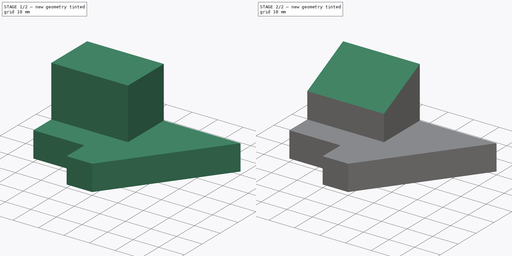
[diagram: build sequence overview — one tinted view per stage of 2, left to right]
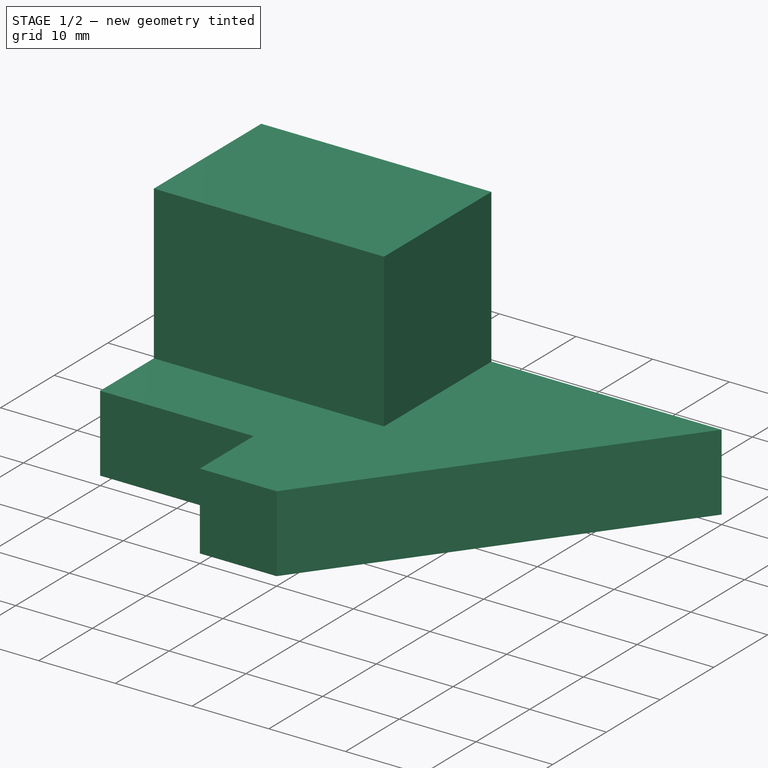
[diagram: stage 1 of 2 — iso view after this stage's code; geometry added in this stage tinted green]
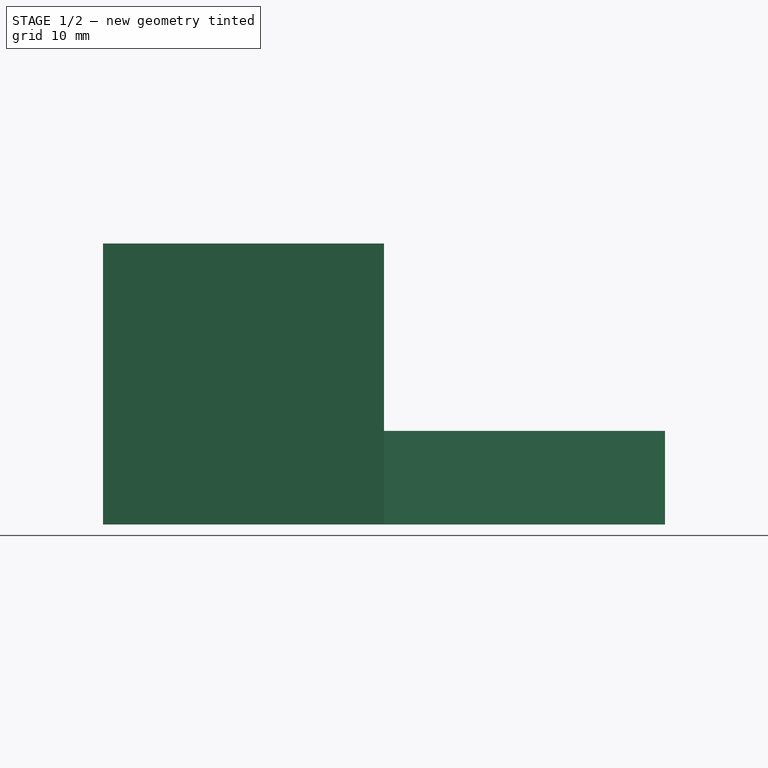
[diagram: stage 1 of 2 — front view after this stage's code; geometry added in this stage tinted green]
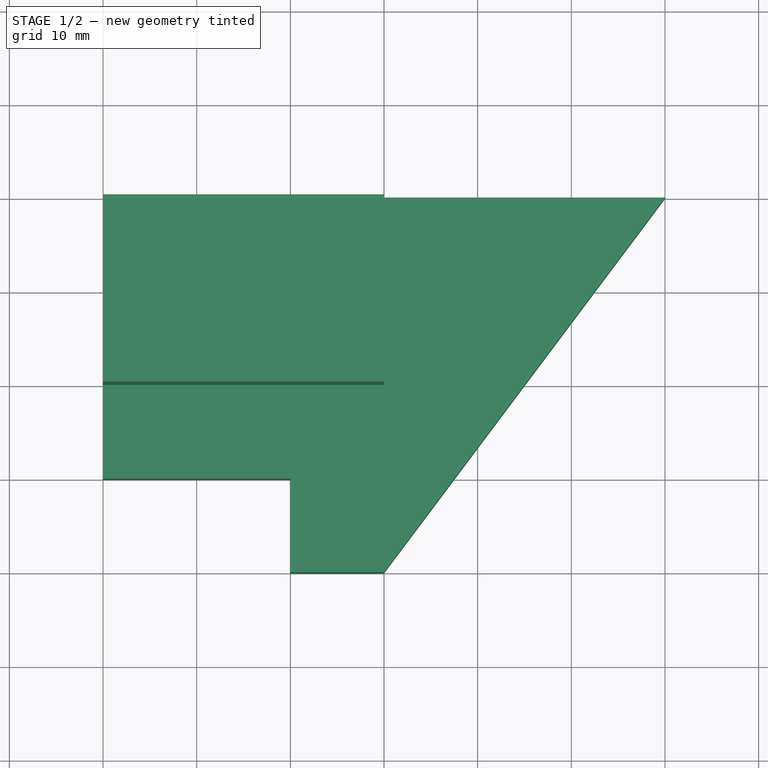
[diagram: stage 1 of 2 — top view after this stage's code; geometry added in this stage tinted green]
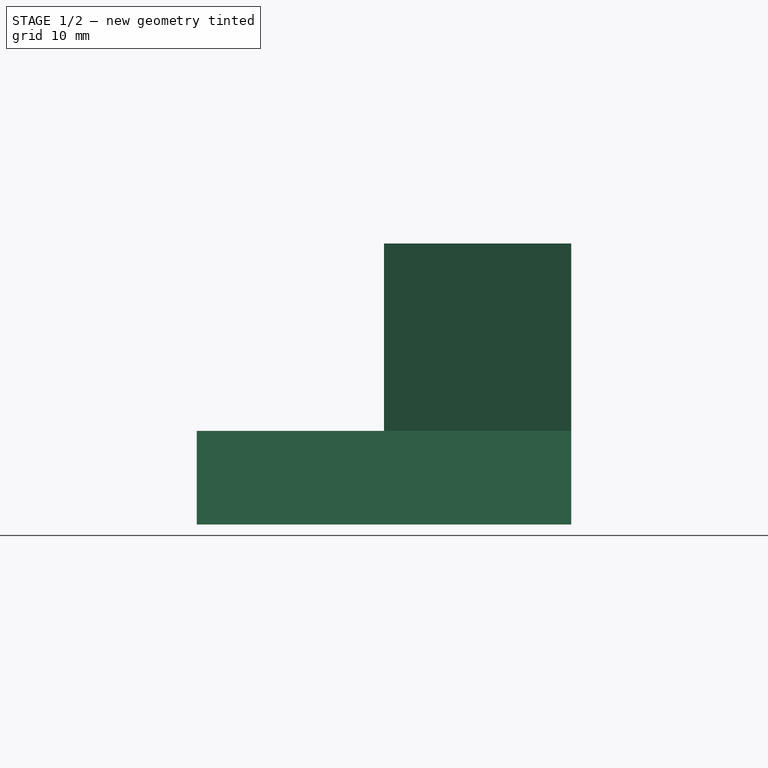
[diagram: stage 1 of 2 — right view after this stage's code; geometry added in this stage tinted green]
FCSTD DOCUMENT  (FreeCAD 1.0R39109 (Git))
Label: 43
License: All rights reserved
LicenseURL: https://en.wikipedia.org/wiki/All_rights_reserved
objects: Sketcher::SketchObject×3, PartDesign::Pad×2, PartDesign::Pocket×1, PartDesign::Body×1
note: 16 computed .brp shape members not serialized (recipe doc carries the construction recipe); baked Part::Feature solids carry a one-line shape summary decoded from their .brp

FEATURE [Sketcher::SketchObject] Sketch
  ArcFitTolerance = 1e-06
  AttachmentSupport = -> [XY_Plane]
  FullyConstrained = true
  MakeInternals = false
  MapMode = 5
  sketch-geometry (6):
    g0: LineSegment StartX=-30 StartY=20 StartZ=0 EndX=-30 EndY=-10 EndZ=0
    g1: LineSegment StartX=-30 StartY=-10 StartZ=0 EndX=-10 EndY=-10 EndZ=0
    g2: LineSegment StartX=-10 StartY=-10 StartZ=0 EndX=-10 EndY=-20 EndZ=0
    g3: LineSegment StartX=-10 StartY=-20 StartZ=0 EndX=1.8e-15 EndY=-20 EndZ=0
    g4: LineSegment StartX=1.8e-15 StartY=-20 StartZ=0 EndX=30 EndY=20 EndZ=0
    g5: LineSegment StartX=30 StartY=20 StartZ=0 EndX=-30 EndY=20 EndZ=0
  constraints (18):
    c: Coincident(g0,g1)
    c: Horizontal(g1)
    c: Coincident(g1,g2)
    c: Coincident(g2,g3)
    c: Horizontal(g3)
    c: Coincident(g3,g4)
    c: Coincident(g4,g5)
    c: Coincident(g5,g0)
    c: Horizontal(g5)
    c: Vertical(g0)
    c: Vertical(g2)
    c: DistanceY(g0,g0) = 30
    c: DistanceX(g3,g3) = 10
    c: DistanceY(g2,g2) = 10
    c: DistanceX(g1,g1) = 20
    c: Distance(g-1,g5) = 20
    c: DistanceX(g5,g5) = 60
    c: Distance(g4,g-2) = 30
FEATURE [PartDesign::Pad] Pad
  Direction = (0,0,1)
  Length = 10
  Length2 = 10
  Midplane = true
  Profile = -> Sketch
  ReferenceAxis = -> Sketch [N_Axis]
  Refine = true
  Suppressed = false
  Type = 0
FEATURE [Sketcher::SketchObject] Sketch001
  ArcFitTolerance = 1e-06
  AttachmentSupport = -> [Pad]
  ExternalGeometry = -> [Pad]
  FullyConstrained = true
  MakeInternals = false
  MapMode = 5
  Placement = pos=(0,0,5) rot=(0,0,1;0rad)
  sketch-geometry (4):
    g0: LineSegment StartX=-30 StartY=20 StartZ=0 EndX=-30 EndY=0 EndZ=0
    g1: LineSegment StartX=-30 StartY=0 StartZ=0 EndX=0 EndY=0 EndZ=0
    g2: LineSegment StartX=0 StartY=0 StartZ=0 EndX=0 EndY=20 EndZ=0
    g3: LineSegment StartX=0 StartY=20 StartZ=0 EndX=-30 EndY=20 EndZ=0
  constraints (10):
    c: Coincident(g0,g1)
    c: Coincident(g1,g2)
    c: Coincident(g2,g3)
    c: Coincident(g3,g0)
    c: Vertical(g0)
    c: Vertical(g2)
    c: Horizontal(g1)
    c: Horizontal(g3)
    c: Coincident(g0,g-4)
    c: Coincident(g1,g-1)
FEATURE [PartDesign::Pad] Pad001
  BaseFeature = -> Pad
  Direction = (0,0,1)
  Length = 20
  Length2 = 10
  Profile = -> Sketch001
  ReferenceAxis = -> Sketch001 [N_Axis]
  Refine = true
  Suppressed = false
  Type = 0
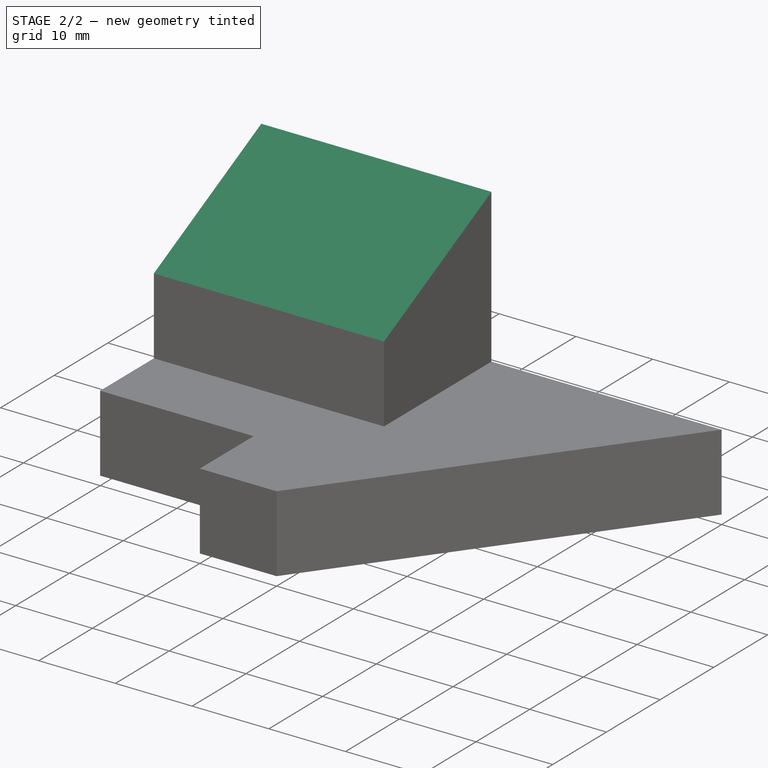
[diagram: stage 2 of 2 — iso view after this stage's code; geometry added in this stage tinted green]
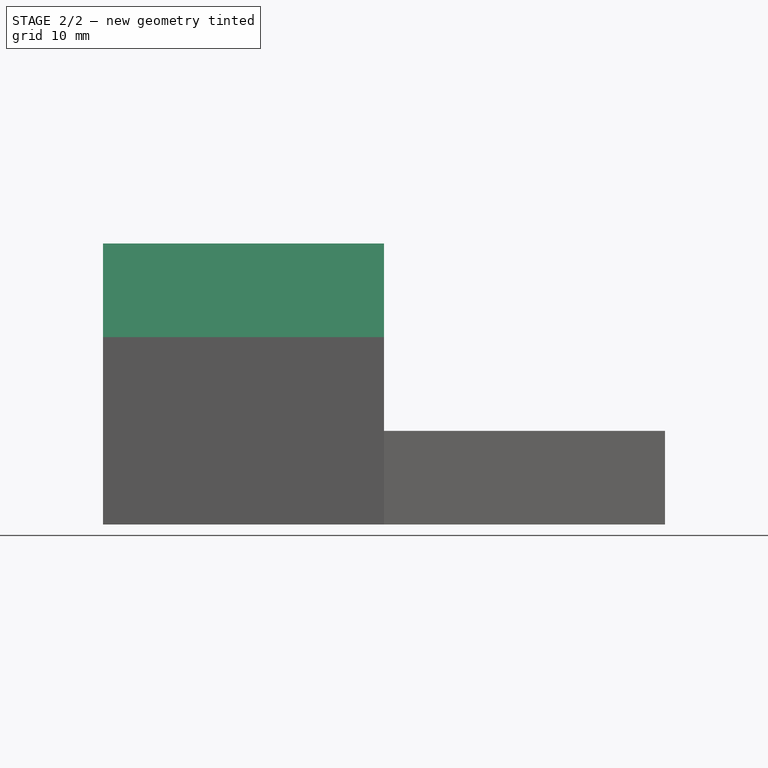
[diagram: stage 2 of 2 — front view after this stage's code; geometry added in this stage tinted green]
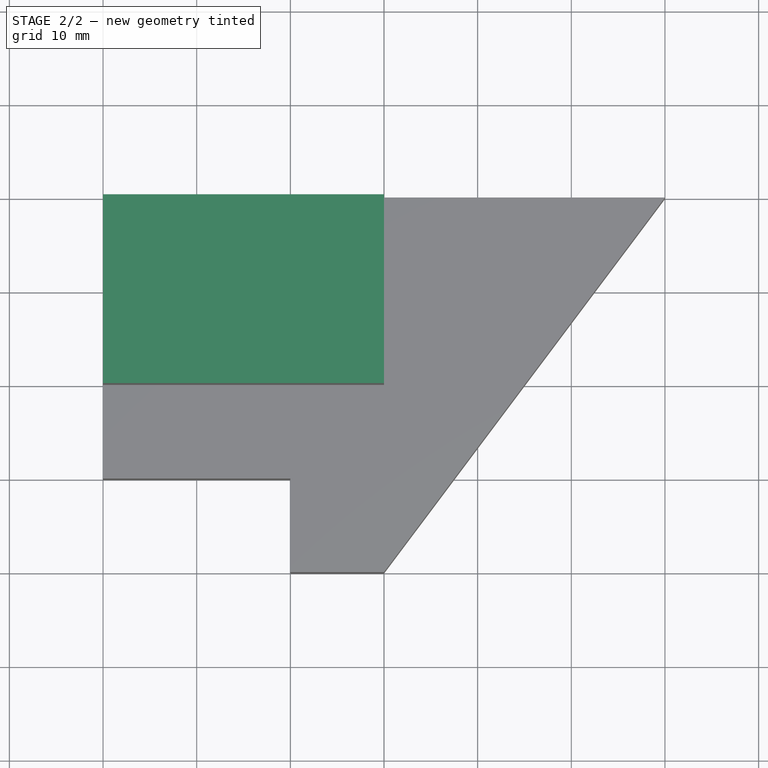
[diagram: stage 2 of 2 — top view after this stage's code; geometry added in this stage tinted green]
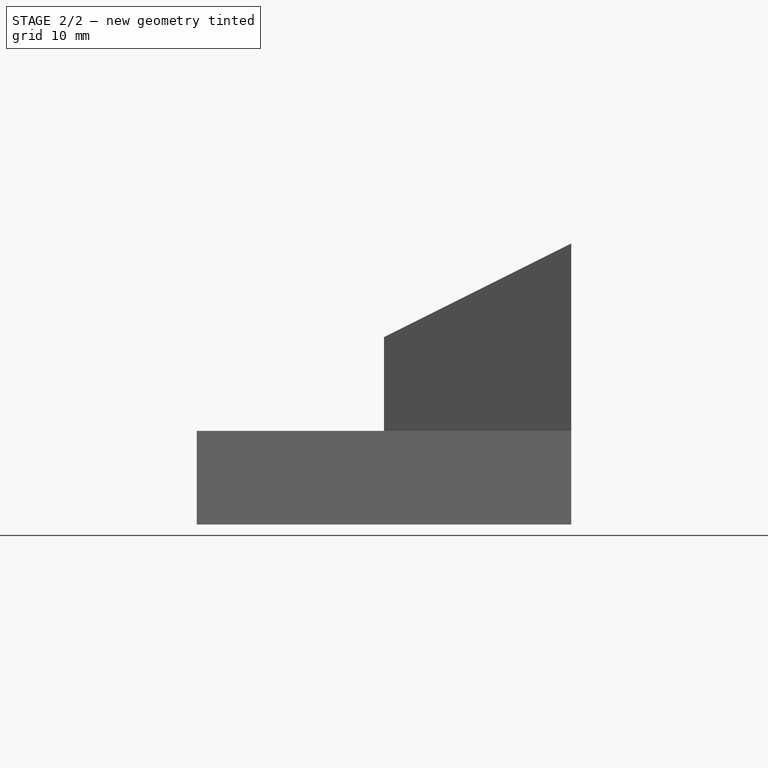
[diagram: stage 2 of 2 — right view after this stage's code; geometry added in this stage tinted green]
FEATURE [Sketcher::SketchObject] Sketch002
  ArcFitTolerance = 1e-06
  AttachmentSupport = -> [Pad001]
  ExternalGeometry = -> [Pad001]
  FullyConstrained = true
  MakeInternals = false
  MapMode = 5
  Placement = pos=(0,0,0) rot=(0.57735,0.57735,0.57735;2.0944rad)
  sketch-geometry (3):
    g0: LineSegment StartX=0 StartY=25 StartZ=0 EndX=0 EndY=15 EndZ=0
    g1: LineSegment StartX=0 StartY=25 StartZ=0 EndX=20 EndY=25 EndZ=0
    g2: LineSegment StartX=0 StartY=15 StartZ=0 EndX=20 EndY=25 EndZ=0
  constraints (7):
    c: Coincident(g0,g-4)
    c: Vertical(g0)
    c: DistanceY(g0,g0) = 10
    c: Coincident(g1,g0)
    c: Coincident(g1,g-4)
    c: Coincident(g2,g0)
    c: Coincident(g2,g1)
FEATURE [PartDesign::Pocket] Pocket
  BaseFeature = -> Pad001
  Direction = (-1,0,0)
  Length = 5
  Length2 = 5
  Profile = -> Sketch002
  ReferenceAxis = -> Sketch002 [N_Axis]
  Refine = true
  Suppressed = false
  Type = 1
FEATURE [PartDesign::Body] Body
  AllowCompound = false
  Group = -> [Sketch,Pad,Sketch001,Pad001,Sketch002,Pocket]
  Origin = -> Origin
  Tip = -> Pocket
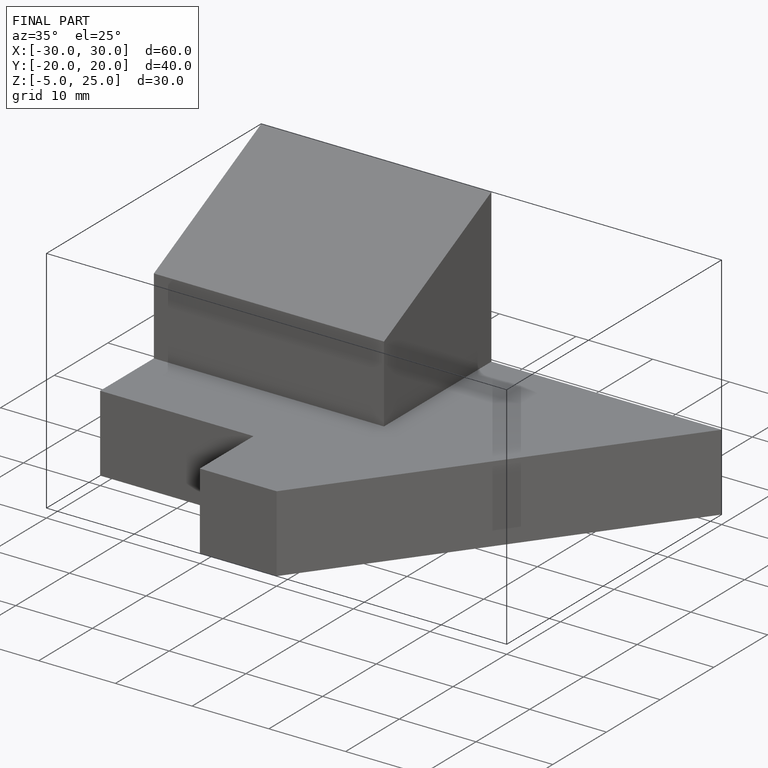
[diagram: finished part — iso view with bounding-box wireframe]
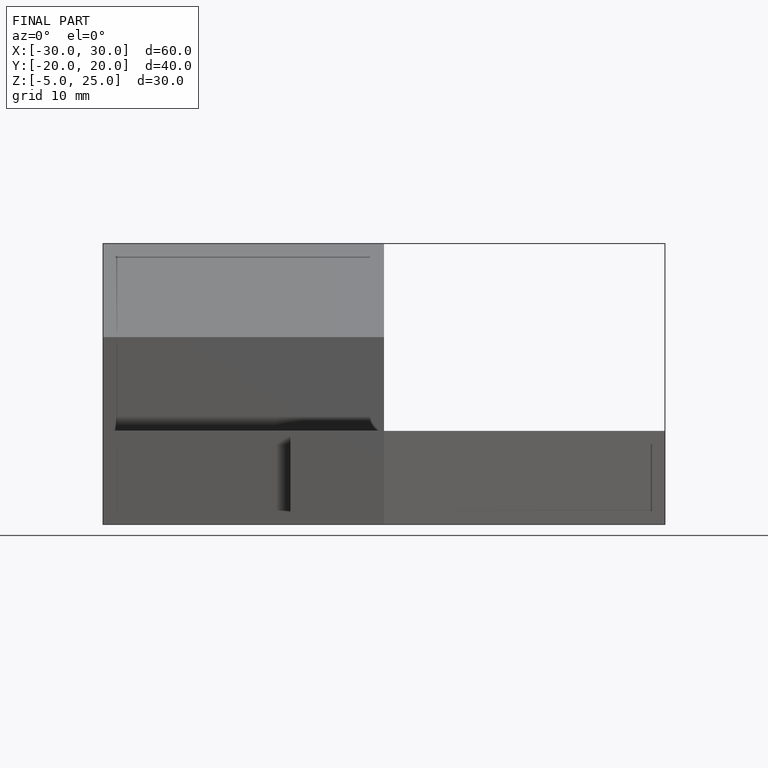
[diagram: finished part — front view with bounding-box wireframe]
